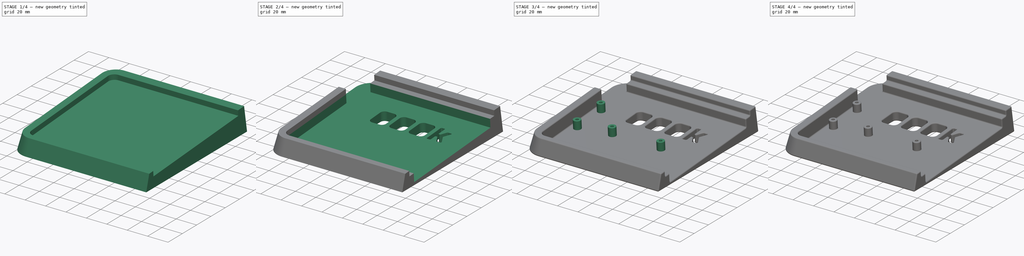
[diagram: build sequence overview — one tinted view per stage of 4, left to right]
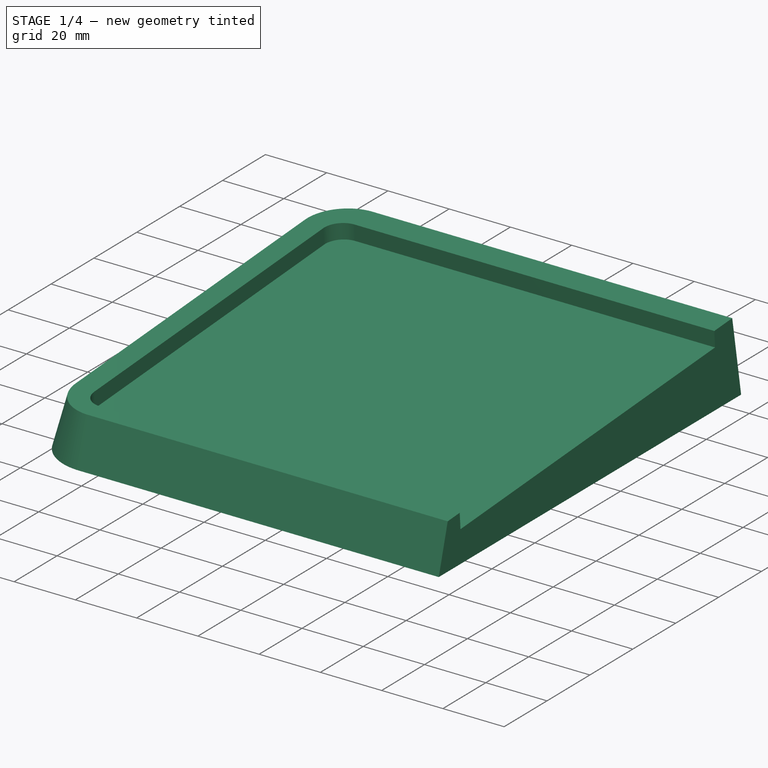
[diagram: stage 1 of 4 — iso view after this stage's code; geometry added in this stage tinted green]
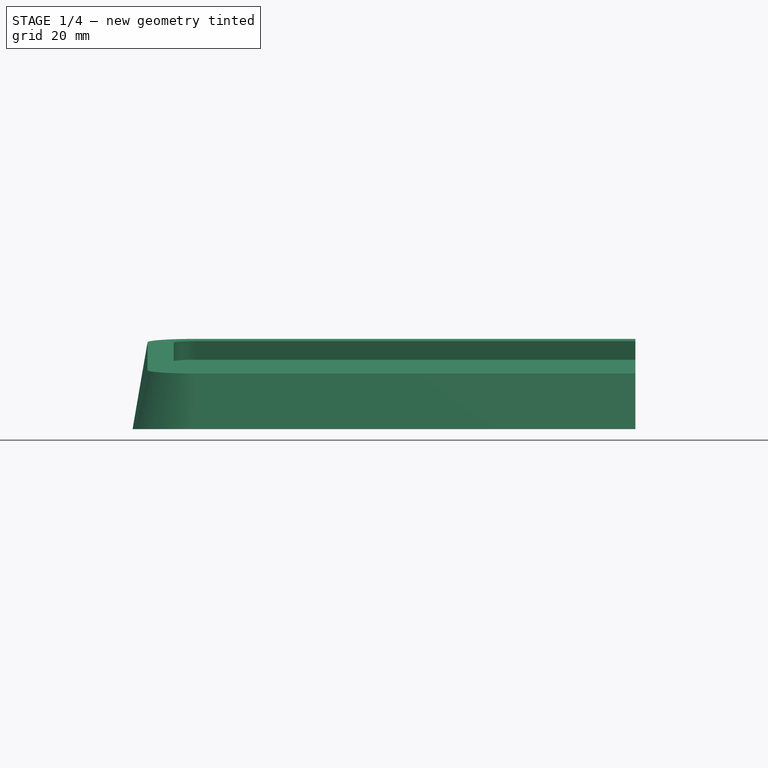
[diagram: stage 1 of 4 — front view after this stage's code; geometry added in this stage tinted green]
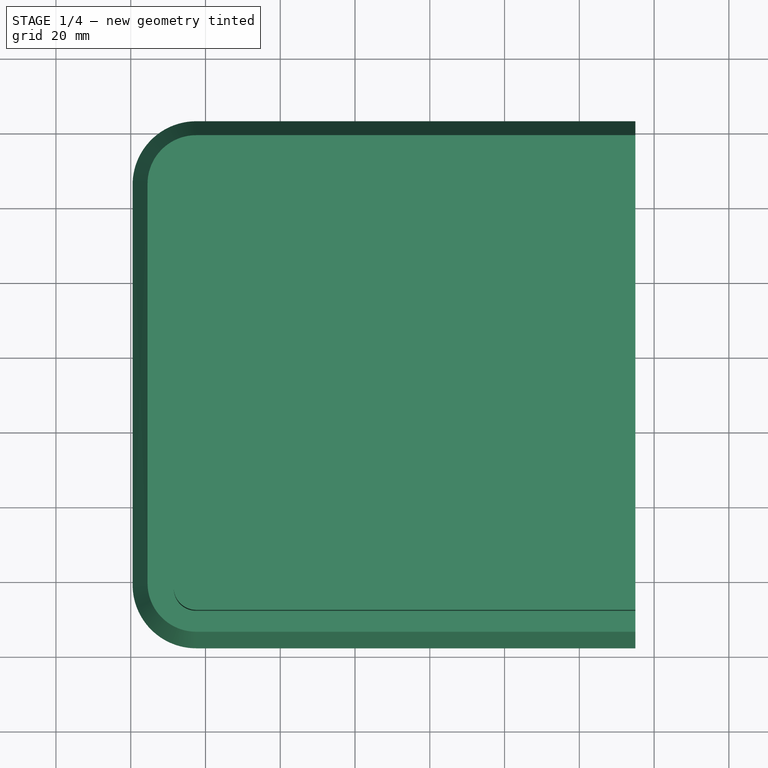
[diagram: stage 1 of 4 — top view after this stage's code; geometry added in this stage tinted green]
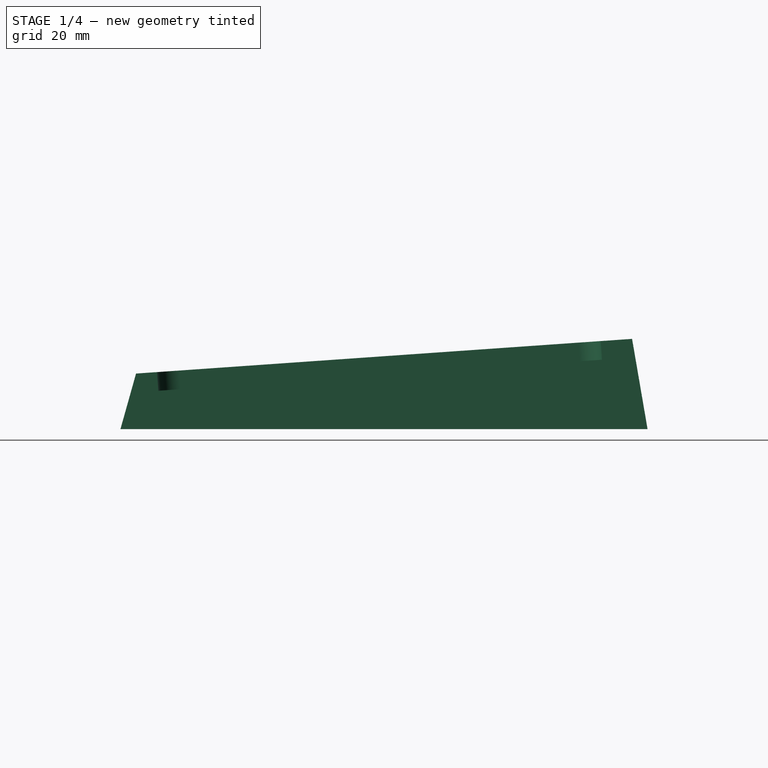
[diagram: stage 1 of 4 — right view after this stage's code; geometry added in this stage tinted green]
FCSTD DOCUMENT  (FreeCAD 0.20R)
Label: case2
License: All rights reserved
LicenseURL: http://en.wikipedia.org/wiki/All_rights_reserved
objects: Sketcher::SketchObject×8, PartDesign::Pocket×4, PartDesign::Fillet×2, PartDesign::AdditiveLoft×1, PartDesign::Pad×1, PartDesign::Hole×1, PartDesign::Chamfer×1, PartDesign::Body×1
note: 29 computed .brp shape members not serialized (recipe doc carries the construction recipe); baked Part::Feature solids carry a one-line shape summary decoded from their .brp

FEATURE [Sketcher::SketchObject] Sketch001  label="ext2"
  AttachmentOffset = pos=(0,0,20) rot=(1,0,0;0.069813rad)
  FullyConstrained = false
  MapMode = 5
  Placement = pos=(0,0,20) rot=(1,0,0;0.069813rad)
  Support = -> [XY_Plane]
  sketch-geometry (6):
    g0: ArcOfCircle CenterX=-122.5 CenterY=-60.6438 CenterZ=0 NormalX=0 NormalY=0 NormalZ=1 AngleXU=0 Radius=13 StartAngle=3.14159 EndAngle=4.71239
    g1: LineSegment StartX=-135.5 StartY=-60.6438 StartZ=0 EndX=-135.5 EndY=46.3562 EndZ=0
    g2: ArcOfCircle CenterX=-122.5 CenterY=46.3562 CenterZ=0 NormalX=0 NormalY=0 NormalZ=1 AngleXU=0 Radius=13 StartAngle=1.5708 EndAngle=3.14159
    g3: LineSegment StartX=-122.5 StartY=59.3562 StartZ=0 EndX=-5 EndY=59.3563 EndZ=0
    g4: LineSegment StartX=-5 StartY=59.3563 StartZ=0 EndX=-5 EndY=-73.6437 EndZ=0
    g5: LineSegment StartX=-122.5 StartY=-73.6438 StartZ=0 EndX=-5 EndY=-73.6437 EndZ=0
  constraints (6):
    c: Coincident(g0,g1)
    c: Coincident(g1,g2)
    c: Coincident(g0,g5)
    c: Coincident(g2,g3)
    c: Coincident(g4,g5)
    c: Coincident(g3,g4)
FEATURE [Sketcher::SketchObject] Sketch002  label="ext3"
  FullyConstrained = false
  MapMode = 5
  Support = -> [XY_Plane]
  sketch-geometry (6):
    g0: ArcOfCircle CenterX=-122.5 CenterY=-60.6438 CenterZ=0 NormalX=0 NormalY=0 NormalZ=1 AngleXU=0 Radius=17 StartAngle=3.14159 EndAngle=4.71239
    g1: LineSegment StartX=-139.5 StartY=-60.6438 StartZ=0 EndX=-139.5 EndY=46.3562 EndZ=0
    g2: ArcOfCircle CenterX=-122.5 CenterY=46.3562 CenterZ=0 NormalX=0 NormalY=0 NormalZ=1 AngleXU=0 Radius=17 StartAngle=1.5708 EndAngle=3.14159
    g3: LineSegment StartX=-122.5 StartY=-77.6438 StartZ=0 EndX=-5 EndY=-77.6438 EndZ=0
    g4: LineSegment StartX=-122.5 StartY=63.3562 StartZ=0 EndX=-5 EndY=63.3562 EndZ=0
    g5: LineSegment StartX=-5 StartY=63.3562 StartZ=0 EndX=-5 EndY=-77.6438 EndZ=0
  constraints (6):
    c: Coincident(g0,g1)
    c: Coincident(g1,g2)
    c: Coincident(g0,g3)
    c: Coincident(g2,g4)
    c: Coincident(g3,g5)
    c: Coincident(g4,g5)
FEATURE [PartDesign::AdditiveLoft] AdditiveLoft
  Closed = true
  Profile = -> Sketch001
  Ruled = true
  Sections = -> [Sketch002]
FEATURE [Sketcher::SketchObject] Sketch  label="ext1"
  FullyConstrained = false
  MapMode = 5
  Placement = pos=(2e-16,-1.39173,19.9027) rot=(1,0,0;0.069813rad)
  Support = -> [AdditiveLoft]
  sketch-geometry (6):
    g0: ArcOfCircle CenterX=-122.5 CenterY=46.3562 CenterZ=0 NormalX=0 NormalY=0 NormalZ=1 AngleXU=0 Radius=6 StartAngle=1.5708 EndAngle=3.14159
    g1: LineSegment StartX=-128.5 StartY=-60.6438 StartZ=0 EndX=-128.5 EndY=46.3562 EndZ=0
    g2: ArcOfCircle CenterX=-122.5 CenterY=-60.6438 CenterZ=0 NormalX=0 NormalY=0 NormalZ=1 AngleXU=0 Radius=6 StartAngle=3.14159 EndAngle=4.71239
    g3: LineSegment StartX=-122.5 StartY=52.3562 StartZ=0 EndX=-5 EndY=52.3562 EndZ=0
    g4: LineSegment StartX=-5 StartY=52.3562 StartZ=0 EndX=-5 EndY=-66.6438 EndZ=0
    g5: LineSegment StartX=-122.5 StartY=-66.6438 StartZ=0 EndX=-5 EndY=-66.6438 EndZ=0
  constraints (6):
    c: Coincident(g1,g2)
    c: Coincident(g0,g1)
    c: Coincident(g2,g5)
    c: Coincident(g0,g3)
    c: Coincident(g4,g5)
    c: Coincident(g3,g4)
FEATURE [PartDesign::Pocket] Pocket
  BaseFeature = -> AdditiveLoft
  Direction = (0,0.0697565,-0.997564)
  Length = 5
  Length2 = 5
  Profile = -> Sketch
  ReferenceAxis = -> Sketch [N_Axis]
  Type = 0
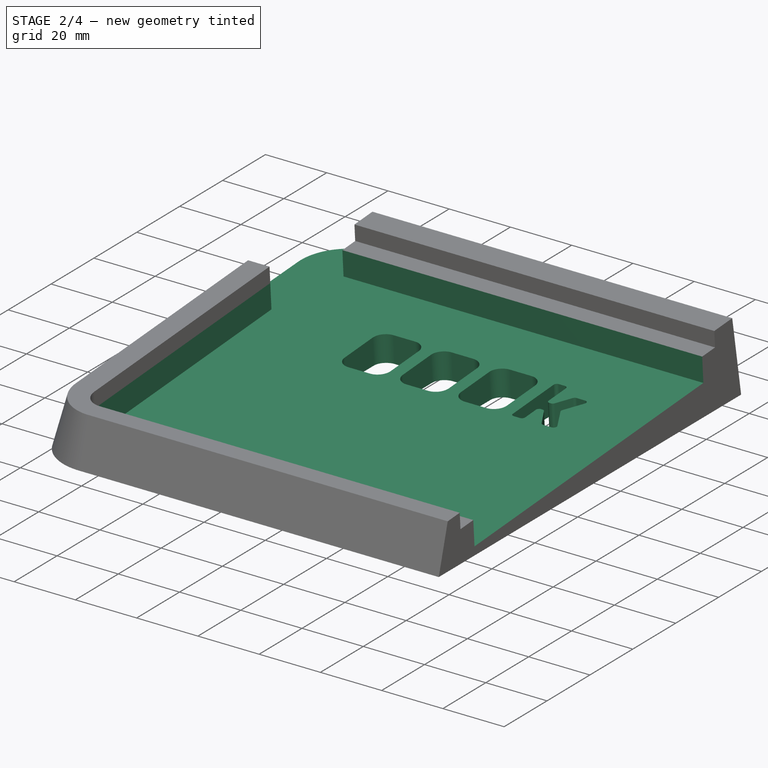
[diagram: stage 2 of 4 — iso view after this stage's code; geometry added in this stage tinted green]
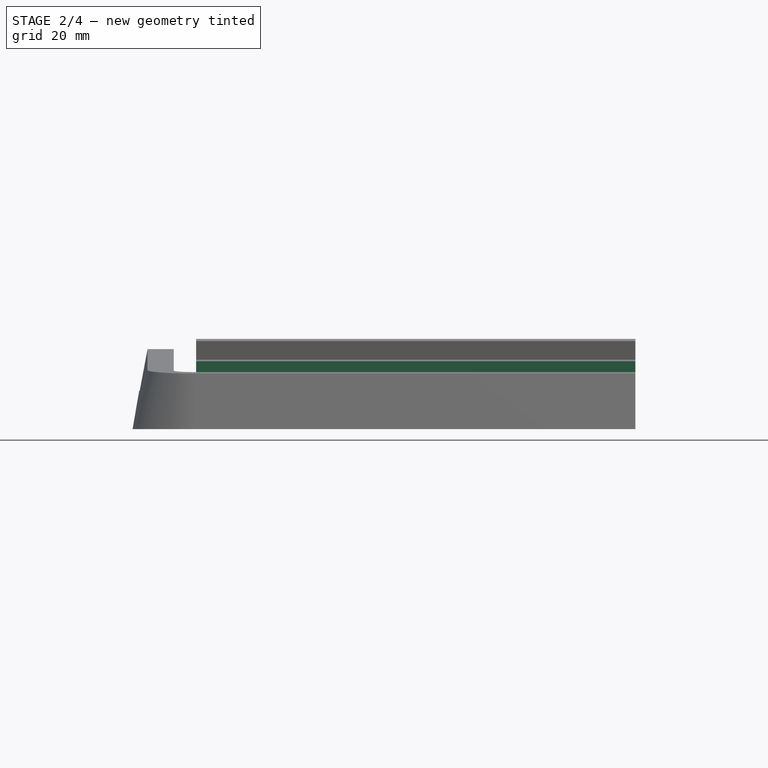
[diagram: stage 2 of 4 — front view after this stage's code; geometry added in this stage tinted green]
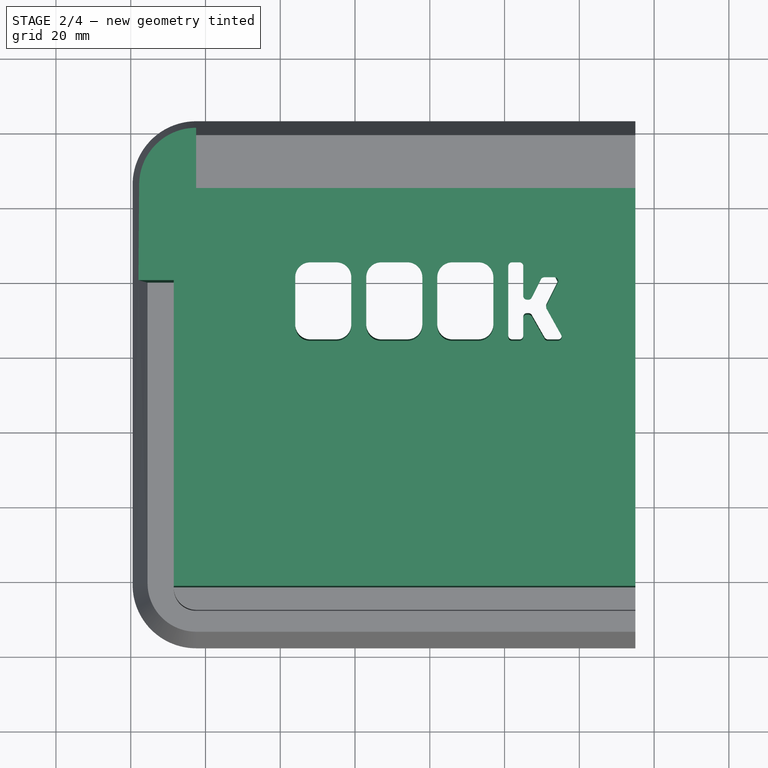
[diagram: stage 2 of 4 — top view after this stage's code; geometry added in this stage tinted green]
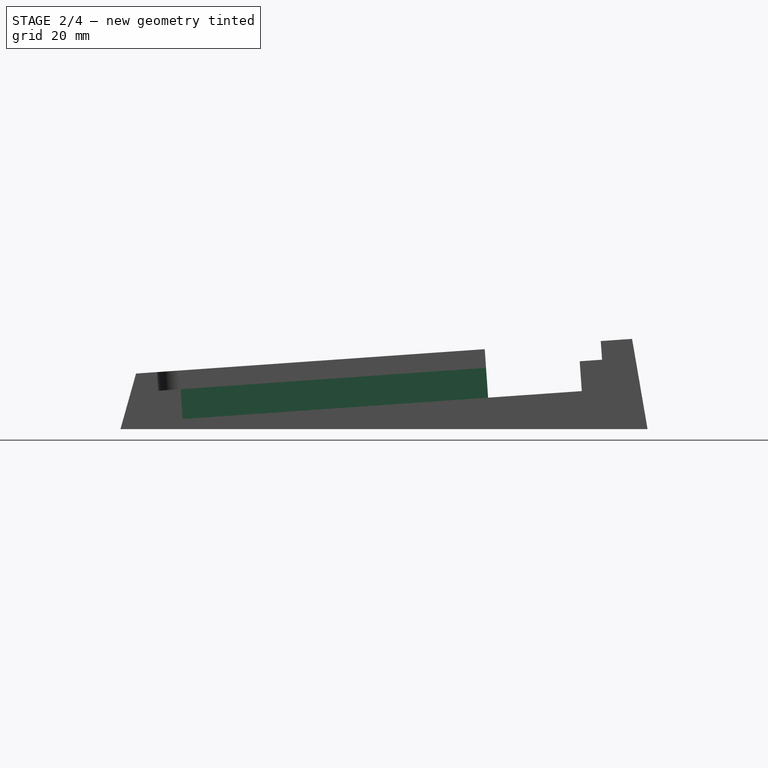
[diagram: stage 2 of 4 — right view after this stage's code; geometry added in this stage tinted green]
FEATURE [Sketcher::SketchObject] Sketch004
  ExternalGeometry = -> [Pocket]
  FullyConstrained = true
  MapMode = 5
  Placement = pos=(0,-1.04295,14.9149) rot=(1,0,0;0.069813rad)
  Support = -> [Pocket]
  sketch-geometry (4):
    g0: LineSegment StartX=-5 StartY=46.3562 StartZ=0 EndX=-128.5 EndY=46.3562 EndZ=0
    g1: LineSegment StartX=-128.5 StartY=46.3562 StartZ=0 EndX=-128.5 EndY=-60.6438 EndZ=0
    g2: LineSegment StartX=-128.5 StartY=-60.6438 StartZ=0 EndX=-5 EndY=-60.6438 EndZ=0
    g3: LineSegment StartX=-5 StartY=-60.6438 StartZ=0 EndX=-5 EndY=46.3562 EndZ=0
  constraints (10):
    c: Coincident(g0,g1)
    c: Coincident(g1,g2)
    c: Coincident(g2,g3)
    c: Coincident(g3,g0)
    c: Horizontal(g0)
    c: Horizontal(g2)
    c: Vertical(g3)
    c: PointOnObject(g0,g-5)
    c: Coincident(g1,g-4)
    c: Coincident(g0,g-4)
FEATURE [PartDesign::Pocket] Pocket001
  BaseFeature = -> Pocket
  Direction = (0,0.0697565,-0.997564)
  Length = 8
  Length2 = 5
  Profile = -> Sketch004
  ReferenceAxis = -> Sketch004 [N_Axis]
  Type = 0
FEATURE [Sketcher::SketchObject] Sketch006
  AttachmentOffset = pos=(-60,15,0) rot=(0,0,1;0rad)
  FullyConstrained = false
  MapMode = 5
  Placement = pos=(-60,14.4786,7.9807) rot=(1,0,0;0.069813rad)
  sketch-geometry (50):
    g0: ArcOfCircle CenterX=-25 CenterY=7 CenterZ=0 NormalX=0 NormalY=0 NormalZ=1 AngleXU=0 Radius=4 StartAngle=0 EndAngle=1.5708
    g1: LineSegment StartX=-32 StartY=11 StartZ=0 EndX=-25 EndY=11 EndZ=0
    g2: ArcOfCircle CenterX=-32 CenterY=7 CenterZ=0 NormalX=0 NormalY=0 NormalZ=1 AngleXU=0 Radius=4 StartAngle=1.5708 EndAngle=3.14159
    g3: LineSegment StartX=-36 StartY=7 StartZ=0 EndX=-36 EndY=-6 EndZ=0
    g4: ArcOfCircle CenterX=-32 CenterY=-6 CenterZ=0 NormalX=0 NormalY=0 NormalZ=1 AngleXU=0 Radius=4 StartAngle=3.14159 EndAngle=4.71239
    g5: LineSegment StartX=-32 StartY=-10 StartZ=0 EndX=-25 EndY=-10 EndZ=0
    g6: ArcOfCircle CenterX=-25 CenterY=-6 CenterZ=0 NormalX=0 NormalY=0 NormalZ=1 AngleXU=0 Radius=4 StartAngle=4.71239 EndAngle=6.28319
    g7: LineSegment StartX=-21 StartY=7 StartZ=0 EndX=-21 EndY=-6 EndZ=0
    g8: ArcOfCircle CenterX=-13 CenterY=7 CenterZ=0 NormalX=0 NormalY=0 NormalZ=1 AngleXU=0 Radius=4 StartAngle=1.5708 EndAngle=3.14159
    g9: LineSegment StartX=-6 StartY=11 StartZ=0 EndX=-13 EndY=11 EndZ=0
    g10: ArcOfCircle CenterX=-6 CenterY=7 CenterZ=0 NormalX=0 NormalY=0 NormalZ=1 AngleXU=0 Radius=4 StartAngle=0 EndAngle=1.5708
    g11: LineSegment StartX=-2 StartY=7 StartZ=0 EndX=-2 EndY=-6 EndZ=0
    g12: ArcOfCircle CenterX=-6 CenterY=-6 CenterZ=0 NormalX=0 NormalY=0 NormalZ=1 AngleXU=0 Radius=4 StartAngle=4.71239 EndAngle=6.28319
    g13: LineSegment StartX=-6 StartY=-10 StartZ=0 EndX=-13 EndY=-10 EndZ=0
    g14: ArcOfCircle CenterX=-13 CenterY=-6 CenterZ=0 NormalX=0 NormalY=0 NormalZ=1 AngleXU=0 Radius=4 StartAngle=3.14159 EndAngle=4.71239
    g15: LineSegment StartX=-17 StartY=7 StartZ=0 EndX=-17 EndY=-6 EndZ=0
    g16: ArcOfCircle CenterX=13 CenterY=7 CenterZ=0 NormalX=0 NormalY=0 NormalZ=1 AngleXU=0 Radius=4 StartAngle=0 EndAngle=1.5708
    g17: LineSegment StartX=6 StartY=11 StartZ=0 EndX=13 EndY=11 EndZ=0
    g18: ArcOfCircle CenterX=6 CenterY=7 CenterZ=0 NormalX=0 NormalY=0 NormalZ=1 AngleXU=0 Radius=4 StartAngle=1.5708 EndAngle=3.14159
    g19: LineSegment StartX=2 StartY=7 StartZ=0 EndX=2 EndY=-6 EndZ=0
    g20: ArcOfCircle CenterX=6 CenterY=-6 CenterZ=0 NormalX=0 NormalY=0 NormalZ=1 AngleXU=0 Radius=4 StartAngle=3.14159 EndAngle=4.71239
    g21: LineSegment StartX=6 StartY=-10 StartZ=0 EndX=13 EndY=-10 EndZ=0
    g22: ArcOfCircle CenterX=13 CenterY=-6 CenterZ=0 NormalX=0 NormalY=0 NormalZ=1 AngleXU=0 Radius=4 StartAngle=4.71239 EndAngle=6.28319
    g23: LineSegment StartX=17 StartY=7 StartZ=0 EndX=17 EndY=-6 EndZ=0
    g24: ArcOfCircle CenterX=26 CenterY=2 CenterZ=0 NormalX=0 NormalY=0 NormalZ=1 AngleXU=0 Radius=1 StartAngle=3.14159 EndAngle=4.71239
    g25: ArcOfCircle CenterX=31.5803 CenterY=-9 CenterZ=0 NormalX=0 NormalY=0 NormalZ=1 AngleXU=0 Radius=1 StartAngle=3.66074 EndAngle=4.71239
    g26: ArcOfCircle CenterX=26 CenterY=-4 CenterZ=0 NormalX=0 NormalY=0 NormalZ=1 AngleXU=0 Radius=1 StartAngle=1.5708 EndAngle=3.14159
    g27: LineSegment StartX=26 StartY=-3 StartZ=0 EndX=26.4197 EndY=-3 EndZ=0
    g28: LineSegment StartX=30.7121 StartY=-9.49614 StartZ=0 EndX=27.2879 EndY=-3.50386 EndZ=0
    g29: ArcOfCircle CenterX=26.4197 CenterY=-4 CenterZ=0 NormalX=0 NormalY=0 NormalZ=1 AngleXU=0 Radius=1 StartAngle=0.519146 EndAngle=1.5708
    g30: LineSegment StartX=25 StartY=-4 StartZ=0 EndX=25 EndY=-9 EndZ=0
    g31: ArcOfCircle CenterX=24 CenterY=-9 CenterZ=0 NormalX=0 NormalY=0 NormalZ=1 AngleXU=0 Radius=1 StartAngle=4.71239 EndAngle=6.28319
    g32: LineSegment StartX=24 StartY=-10 StartZ=0 EndX=22 EndY=-10 EndZ=0
    g33: ArcOfCircle CenterX=22 CenterY=-9 CenterZ=0 NormalX=0 NormalY=0 NormalZ=1 AngleXU=0 Radius=1 StartAngle=3.14159 EndAngle=4.71239
    g34: LineSegment StartX=34.3005 StartY=-10 StartZ=0 EndX=31.5803 EndY=-10 EndZ=0
    g35: ArcOfCircle CenterX=34.3005 CenterY=-9 CenterZ=0 NormalX=0 NormalY=0 NormalZ=1 AngleXU=0 Radius=1 StartAngle=4.71239 EndAngle=6.79028
    g36: ArcOfCircle CenterX=33.382 CenterY=6 CenterZ=0 NormalX=0 NormalY=0 NormalZ=1 AngleXU=0 Radius=1 StartAngle=5.81954 EndAngle=7.85398
    g37: LineSegment StartX=31.2359 StartY=-0.528226 StartZ=0 EndX=34.2764 EndY=5.55279 EndZ=0
    g38: LineSegment StartX=31.2562 StartY=-1.46108 StartZ=0 EndX=35.1746 EndY=-8.51436 EndZ=0
    g39: ArcOfCircle CenterX=32.1303 CenterY=-0.97544 CenterZ=0 NormalX=0 NormalY=0 NormalZ=1 AngleXU=0 Radius=1 StartAngle=2.67795 EndAngle=3.64869
    g40: LineSegment StartX=21 StartY=-9 StartZ=0 EndX=21 EndY=10 EndZ=0
    g41: ArcOfCircle CenterX=22 CenterY=10 CenterZ=0 NormalX=0 NormalY=0 NormalZ=1 AngleXU=0 Radius=1 StartAngle=1.5708 EndAngle=3.14159
    g42: LineSegment StartX=22 StartY=11 StartZ=0 EndX=24 EndY=11 EndZ=0
    g43: LineSegment StartX=25 StartY=10 StartZ=0 EndX=25 EndY=2 EndZ=0
    g44: ArcOfCircle CenterX=24 CenterY=10 CenterZ=0 NormalX=0 NormalY=0 NormalZ=1 AngleXU=0 Radius=1 StartAngle=0 EndAngle=1.5708
    g45: LineSegment StartX=30.618 StartY=7 StartZ=0 EndX=33.382 EndY=7 EndZ=0
    g46: ArcOfCircle CenterX=30.618 CenterY=6 CenterZ=0 NormalX=0 NormalY=0 NormalZ=1 AngleXU=0 Radius=1 StartAngle=1.5708 EndAngle=2.67795
    g47: LineSegment StartX=29.7236 StartY=6.44721 StartZ=0 EndX=27.2764 EndY=1.55279 EndZ=0
    g48: LineSegment StartX=26 StartY=1 StartZ=0 EndX=26.382 EndY=1 EndZ=0
    g49: ArcOfCircle CenterX=26.382 CenterY=2 CenterZ=0 NormalX=0 NormalY=0 NormalZ=1 AngleXU=0 Radius=1 StartAngle=4.71239 EndAngle=5.81954
  constraints (50):
    c: Coincident(g3,g4)
    c: Coincident(g2,g3)
    c: Coincident(g4,g5)
    c: Coincident(g1,g2)
    c: Coincident(g5,g6)
    c: Coincident(g0,g1)
    c: Coincident(g6,g7)
    c: Coincident(g0,g7)
    c: Coincident(g14,g15)
    c: Coincident(g8,g15)
    c: Coincident(g13,g14)
    c: Coincident(g8,g9)
    c: Coincident(g12,g13)
    c: Coincident(g9,g10)
    c: Coincident(g11,g12)
    c: Coincident(g10,g11)
    c: Coincident(g19,g20)
    c: Coincident(g18,g19)
    c: Coincident(g20,g21)
    c: Coincident(g17,g18)
    c: Coincident(g21,g22)
    c: Coincident(g16,g17)
    c: Coincident(g22,g23)
    c: Coincident(g16,g23)
    c: Coincident(g33,g40)
    c: Coincident(g40,g41)
    c: Coincident(g32,g33)
    c: Coincident(g41,g42)
    c: Coincident(g31,g32)
    c: Coincident(g42,g44)
    c: Coincident(g30,g31)
    c: Coincident(g26,g30)
    c: Coincident(g24,g43)
    c: Coincident(g43,g44)
    c: Coincident(g26,g27)
    c: Coincident(g24,g48)
    c: Coincident(g48,g49)
    c: Coincident(g27,g29)
    c: Coincident(g47,g49)
    c: Coincident(g28,g29)
    c: Coincident(g46,g47)
    c: Coincident(g45,g46)
    c: Coincident(g25,g28)
    c: Coincident(g37,g39)
    c: Coincident(g38,g39)
    c: Coincident(g25,g34)
    c: Coincident(g36,g45)
    c: Coincident(g36,g37)
    c: Coincident(g34,g35)
    c: Coincident(g35,g38)
FEATURE [Sketcher::SketchObject] Sketch007
  ExternalGeometry = -> [Pocket001]
  FullyConstrained = true
  MapMode = 5
  Placement = pos=(2e-16,-1.39173,19.9027) rot=(1,0,0;0.069813rad)
  Support = -> [Pocket001]
  sketch-geometry (4):
    g0: LineSegment StartX=-122.5 StartY=63.2019 StartZ=0 EndX=-139.5 EndY=63.2019 EndZ=0
    g1: LineSegment StartX=-139.5 StartY=63.2019 StartZ=0 EndX=-139.5 EndY=21.2433 EndZ=0
    g2: LineSegment StartX=-139.5 StartY=21.2433 StartZ=0 EndX=-122.5 EndY=21.2433 EndZ=0
    g3: LineSegment StartX=-122.5 StartY=21.2433 StartZ=0 EndX=-122.5 EndY=63.2019 EndZ=0
  constraints (11):
    c: Coincident(g0,g1)
    c: Coincident(g1,g2)
    c: Coincident(g2,g3)
    c: Coincident(g3,g0)
    c: Horizontal(g0)
    c: Horizontal(g2)
    c: Vertical(g1)
    c: Vertical(g3)
    c: Coincident(g0,g-4)
    c: PointOnObject(g1,g-3)
    c: DistanceY(g1,g-3) = 25
FEATURE [PartDesign::Pocket] Pocket002
  BaseFeature = -> Pocket001
  Direction = (0,0.0697565,-0.997564)
  Length = 0
  Length2 = 5
  Profile = -> Sketch007
  ReferenceAxis = -> Sketch007 [N_Axis]
  Type = 3
  UpToFace = -> Pocket001 [Face16]
FEATURE [PartDesign::Pocket] Pocket003
  BaseFeature = -> Pocket002
  Direction = (0,0.0697565,-0.997564)
  Length = 5
  Length2 = 5
  Profile = -> Sketch006
  ReferenceAxis = -> Sketch006 [N_Axis]
  Type = 1
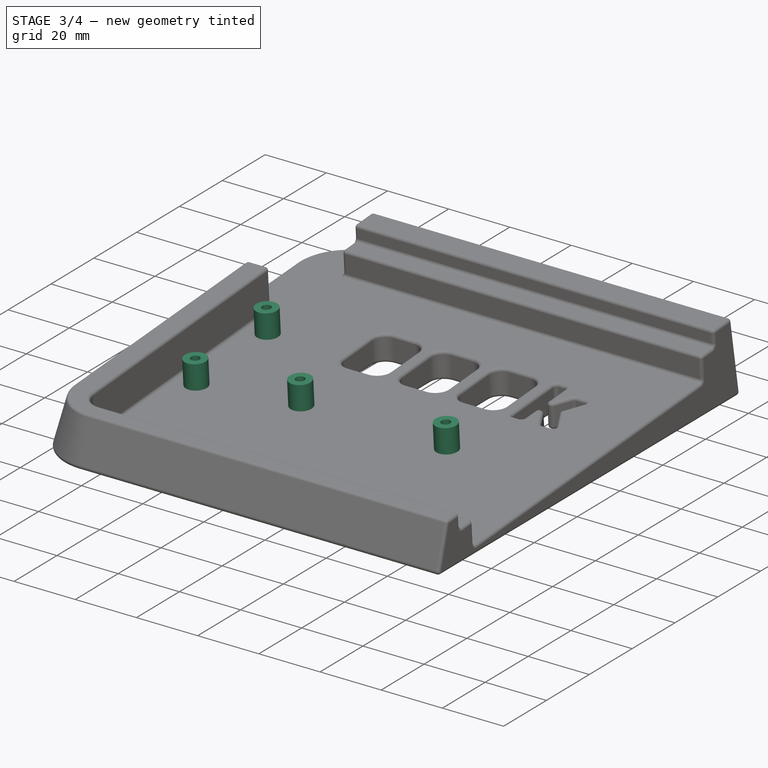
[diagram: stage 3 of 4 — iso view after this stage's code; geometry added in this stage tinted green]
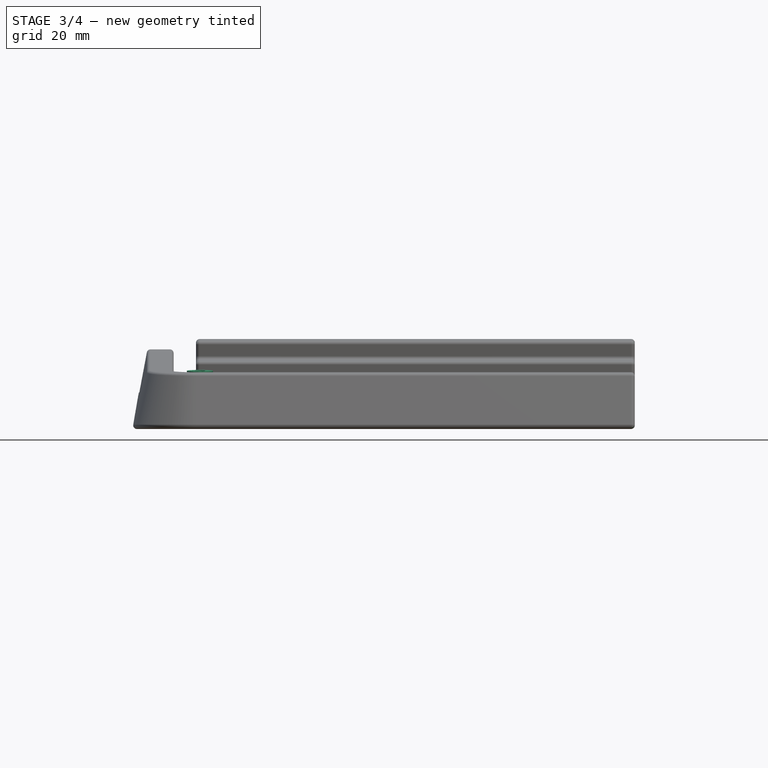
[diagram: stage 3 of 4 — front view after this stage's code; geometry added in this stage tinted green]
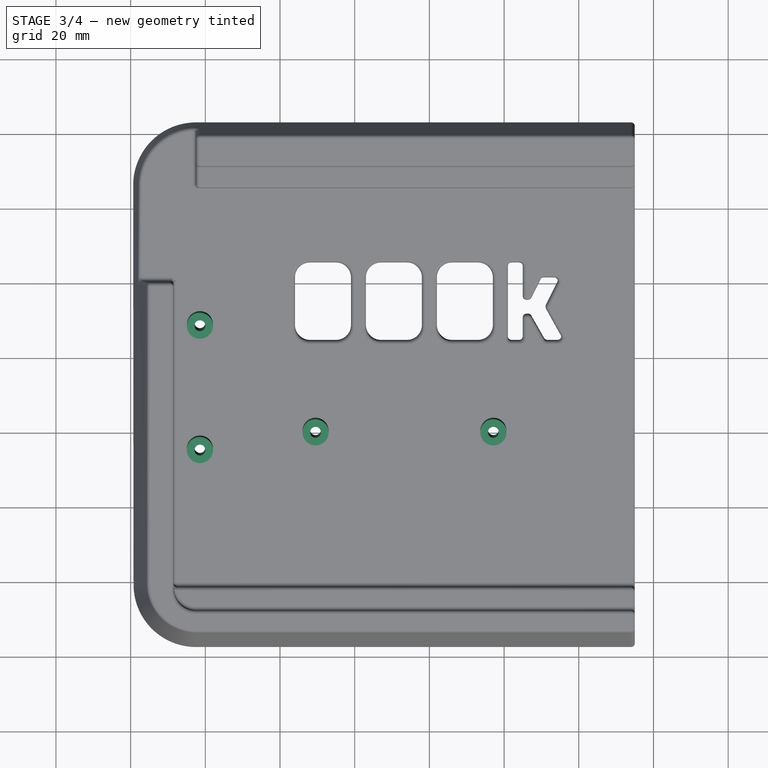
[diagram: stage 3 of 4 — top view after this stage's code; geometry added in this stage tinted green]
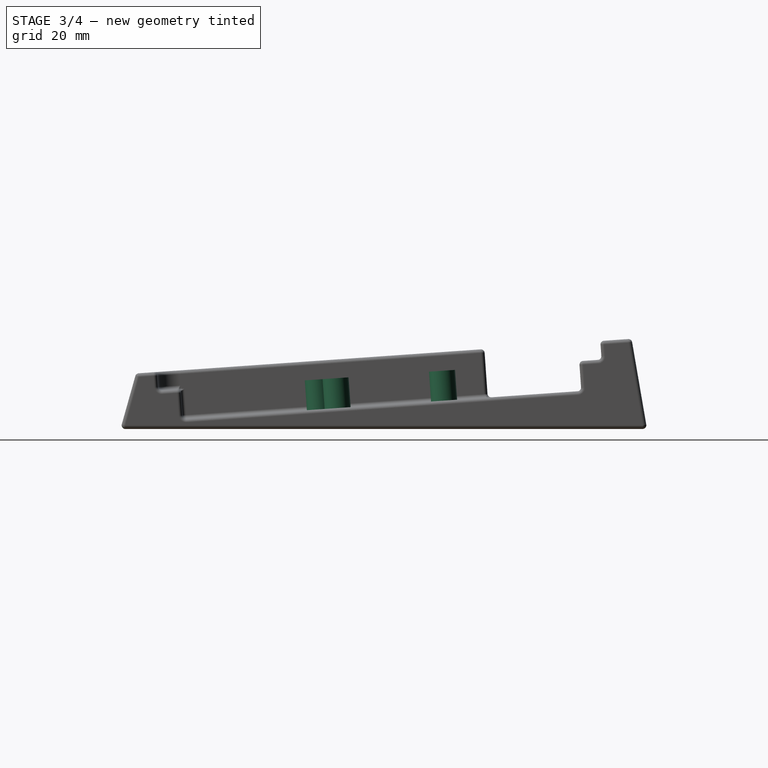
[diagram: stage 3 of 4 — right view after this stage's code; geometry added in this stage tinted green]
FEATURE [PartDesign::Fillet] Fillet
  Base = -> Pocket003 [Face19]
  BaseFeature = -> Pocket003
  Radius = 1
  SupportTransform = false
  UseAllEdges = true
FEATURE [Sketcher::SketchObject] Sketch003  label="trou"
  FullyConstrained = false
  MapMode = 5
  Placement = pos=(0,-0.484897,6.93435) rot=(1,0,0;0.069813rad)
  Support = -> [Fillet]
  sketch-geometry (4):
    g0: Circle CenterX=-42.8626 CenterY=-19.0501 CenterZ=0 NormalX=0 NormalY=0 NormalZ=-1 AngleXU=0 Radius=3.5
    g1: Circle CenterX=-121.444 CenterY=-23.8125 CenterZ=0 NormalX=0 NormalY=0 NormalZ=-1 AngleXU=0 Radius=3.5
    g2: Circle CenterX=-121.444 CenterY=9.525 CenterZ=0 NormalX=0 NormalY=0 NormalZ=-1 AngleXU=0 Radius=3.5
    g3: Circle CenterX=-90.4876 CenterY=-19.0501 CenterZ=0 NormalX=0 NormalY=0 NormalZ=-1 AngleXU=0 Radius=3.5
  constraints (3):
    c: Equal(g1,g2)
    c: Equal(g2,g3)
    c: Diameter(g2) = 7
FEATURE [PartDesign::Pad] Pad
  BaseFeature = -> Fillet
  Direction = (0,-0.0697565,0.997564)
  Length = 8
  Length2 = 10
  Profile = -> Sketch003
  ReferenceAxis = -> Sketch003 [N_Axis]
  Type = 0
FEATURE [Sketcher::SketchObject] Sketch005
  FullyConstrained = false
  MapMode = 5
  Placement = pos=(0,-1.04295,14.9149) rot=(1,0,0;0.069813rad)
  Support = -> [Pad]
  sketch-geometry (4):
    g0: Circle CenterX=-121.444 CenterY=9.525 CenterZ=0 NormalX=0 NormalY=0 NormalZ=1 AngleXU=0 Radius=1.75
    g1: Circle CenterX=-90.4876 CenterY=-19.0501 CenterZ=0 NormalX=0 NormalY=0 NormalZ=1 AngleXU=0 Radius=1.75
    g2: Circle CenterX=-42.8626 CenterY=-19.0501 CenterZ=0 NormalX=0 NormalY=0 NormalZ=1 AngleXU=0 Radius=1.75
    g3: Circle CenterX=-121.444 CenterY=-23.8125 CenterZ=0 NormalX=0 NormalY=0 NormalZ=1 AngleXU=0 Radius=1.75
  constraints (4):
    c: Equal(g1,g3)
    c: Equal(g3,g0)
    c: Equal(g0,g2)
    c: Diameter(g1) = 3.5
FEATURE [PartDesign::Hole] Hole
  BaseFeature = -> Pad
  CustomThreadClearance = 0
  Depth = 395.614
  DepthType = 1
  Diameter = 2.9
  DrillForDepth = false
  DrillPoint = 1
  DrillPointAngle = 118
  HoleCutCountersinkAngle = 90
  HoleCutCustomValues = false
  HoleCutDepth = 0
  HoleCutDiameter = 6.1
  HoleCutType = 0
  ModelThread = false
  Profile = -> Sketch005
  Tapered = false
  TaperedAngle = 90
  ThreadClass = 0
  ThreadDepth = 395.614
  ThreadDepthType = 0
  ThreadDirection = 0
  ThreadFit = 0
  ThreadSize = 8
  ThreadType = 1
  Threaded = false
  UseCustomThreadClearance = false
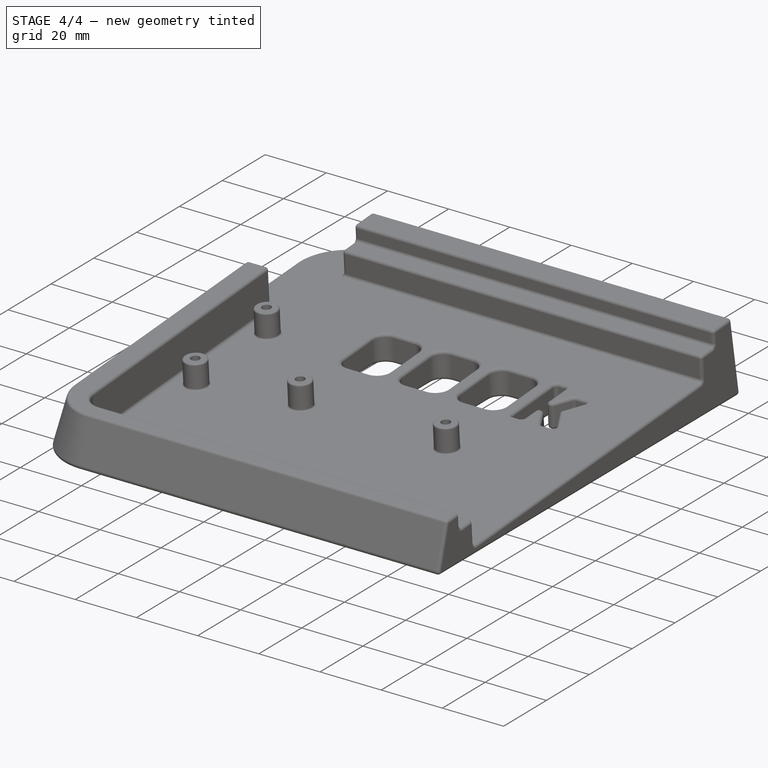
[diagram: stage 4 of 4 — iso view after this stage's code; geometry added in this stage tinted green]
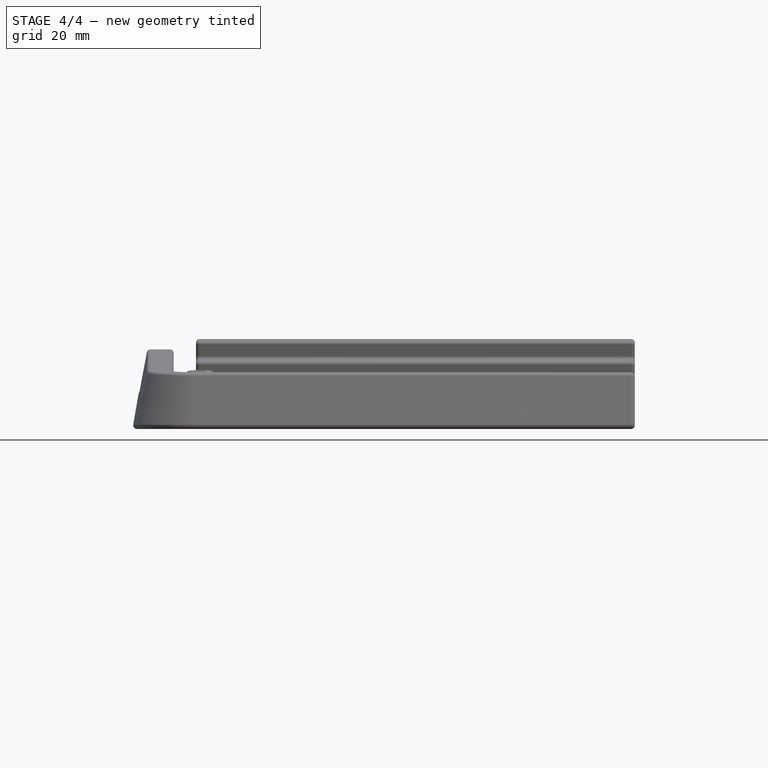
[diagram: stage 4 of 4 — front view after this stage's code; geometry added in this stage tinted green]
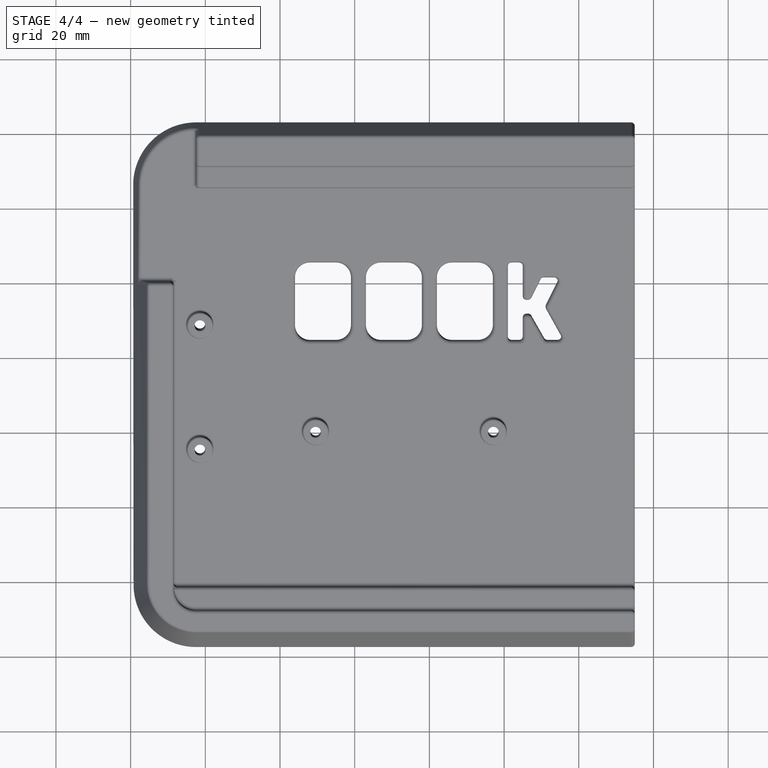
[diagram: stage 4 of 4 — top view after this stage's code; geometry added in this stage tinted green]
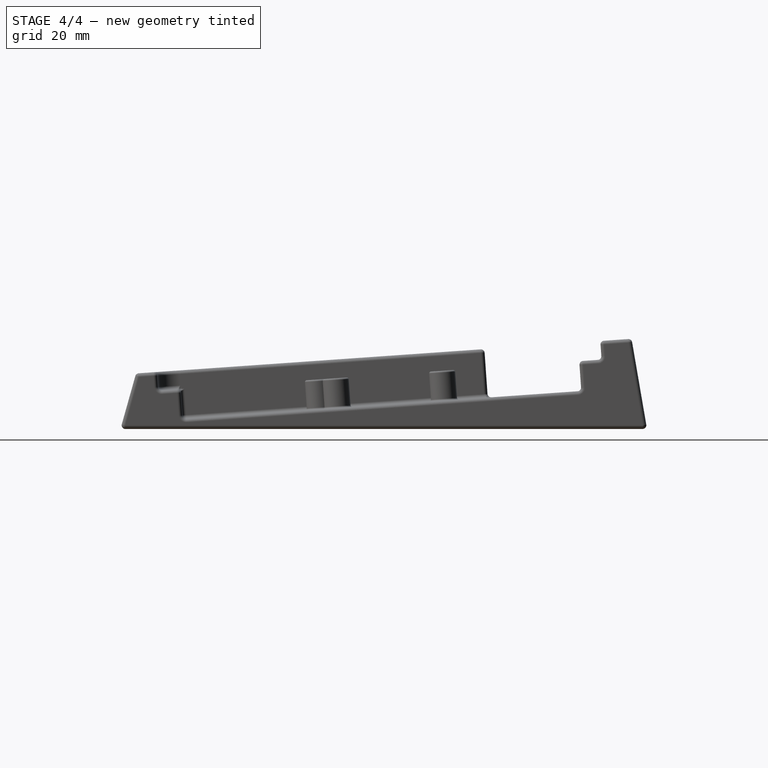
[diagram: stage 4 of 4 — right view after this stage's code; geometry added in this stage tinted green]
FEATURE [PartDesign::Fillet] Fillet001
  Base = -> Hole [Edge255,Edge264,Edge254,Edge216,Edge486,Edge504,Edge484,Edge403]
  BaseFeature = -> Hole
  Radius = 0.5
  SupportTransform = false
  UseAllEdges = false
FEATURE [PartDesign::Chamfer] Chamfer
  Angle = 45
  Base = -> Fillet001 [Edge545,Edge544,Edge543,Edge546]
  BaseFeature = -> Fillet001
  ChamferType = 0
  FlipDirection = false
  Size = 2
  Size2 = 1
  SupportTransform = false
  UseAllEdges = false
FEATURE [PartDesign::Body] Body
  Group = -> [Sketch,Sketch001,Sketch002,Sketch003,AdditiveLoft,Pocket,Sketch004,Pocket001,Sketch005,Sketch006,Sketch007,Pocket002,Pocket003,Fillet,Pad,Hole,Fillet001,Chamfer]
  Origin = -> Origin
  Tip = -> Chamfer
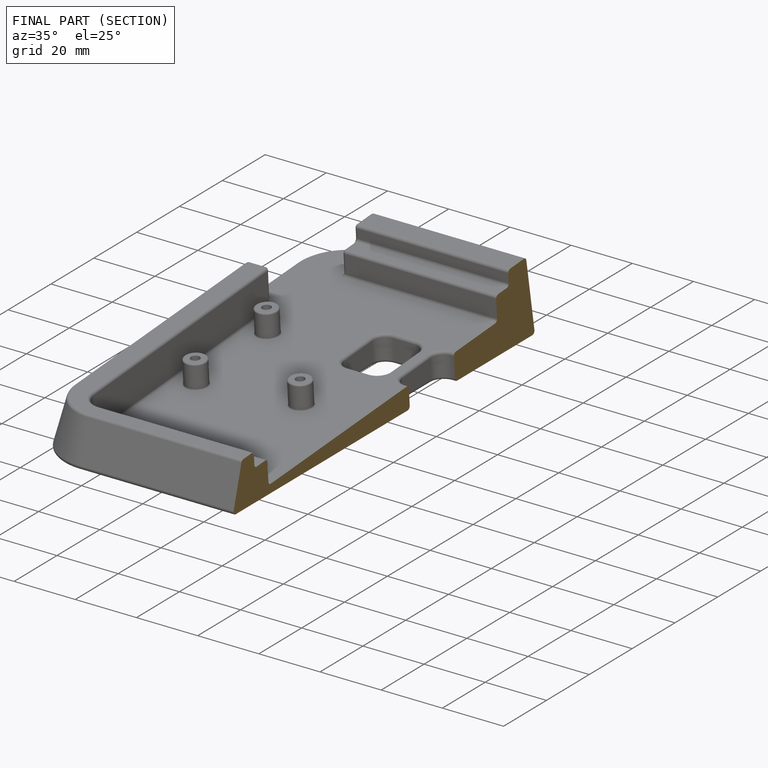
[diagram: finished part — half-section view (interior)]
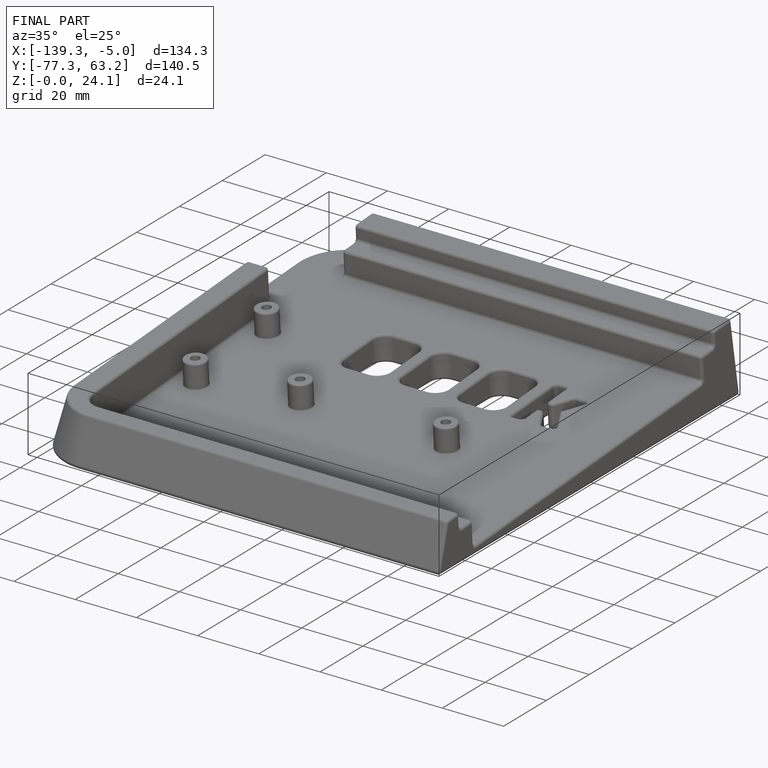
[diagram: finished part — iso view with bounding-box wireframe]
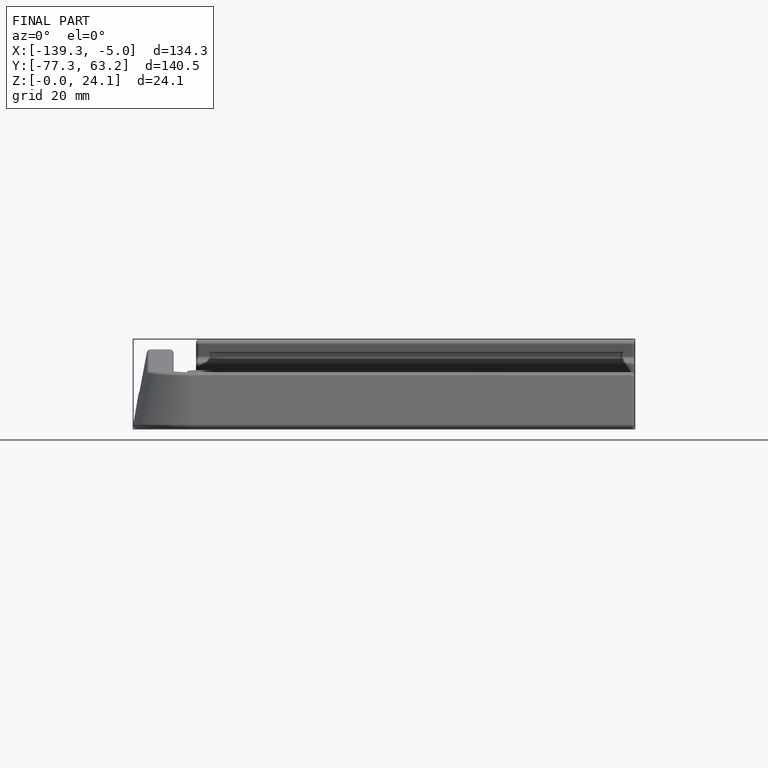
[diagram: finished part — front view with bounding-box wireframe]
